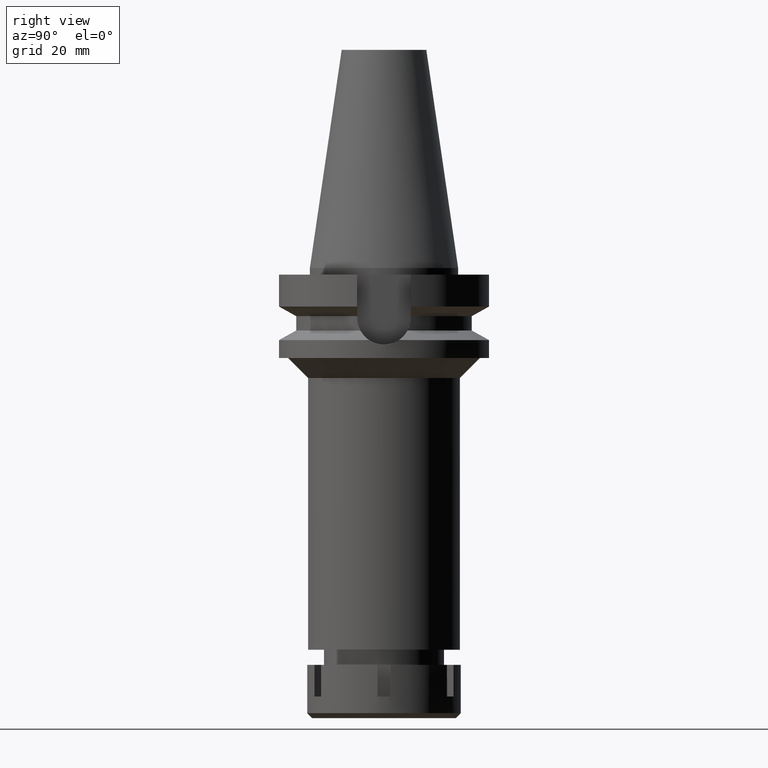
[diagram: clean part render]
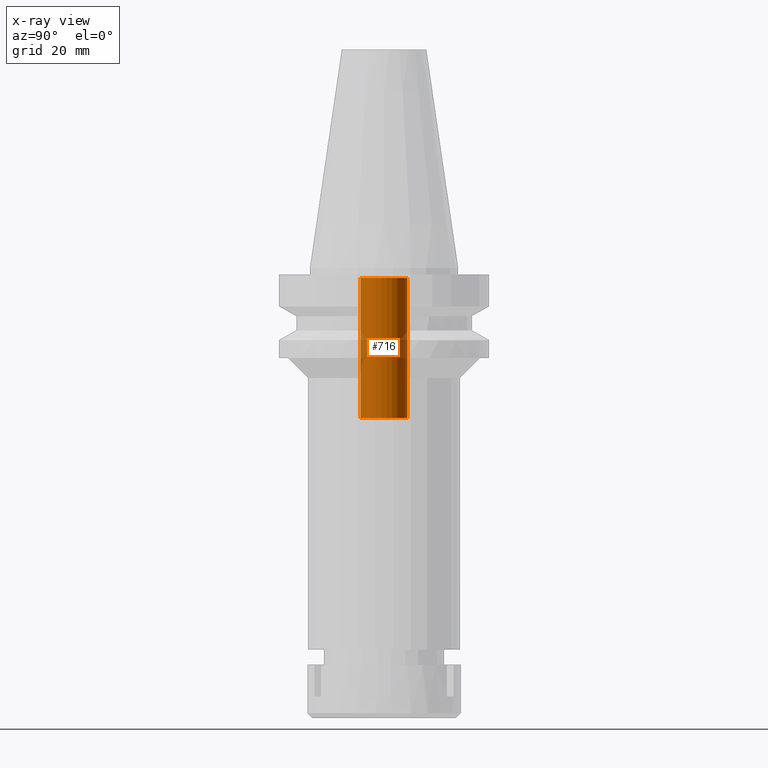
[diagram: x-ray — body ghosted, one internal face saturated and labeled with its STEP entity id]
A machine part, right view, then the same camera in x-ray: the body is ghosted and one INTERNAL B-rep face — a face not visible from any outside direction — is saturated and labeled: STEP entity #716.
In plain terms, the highlighted cylindrical surface (edge-blend (fillet) strip) has radius 7 mm, axis along (0, 0, -1).
Its self-contained STEP definition (entity closure, byte-faithful):
#232 = VECTOR ( 'NONE', #3646, 1000.000000000000000 ) ;
#417 = EDGE_CURVE ( 'NONE', #2951, #2293, #1052, .T. ) ;
#441 = DIRECTION ( 'NONE',  ( 0.0000000000000000000, -1.000000000000000000, 0.0000000000000000000 ) ) ;
#636 = DIRECTION ( 'NONE',  ( 0.0000000000000000000, 0.0000000000000000000, -1.000000000000000000 ) ) ;
#672 = AXIS2_PLACEMENT_3D ( 'NONE', #1208, #3434, #3378 ) ;
#716 = ADVANCED_FACE ( 'NONE', ( #2945 ), #2716, .F. ) ;
#828 = AXIS2_PLACEMENT_3D ( 'NONE', #1041, #2146, #441 ) ;
#872 = CARTESIAN_POINT ( 'NONE',  ( 0.0000000000000000000, -7.000000000000000000, -3.000000000000000000 ) ) ;
#900 = CIRCLE ( 'NONE', #672, 7.000000000000000000 ) ;
#937 = ORIENTED_EDGE ( 'NONE', *, *, #417, .T. ) ;
#1041 = CARTESIAN_POINT ( 'NONE',  ( 0.0000000000000000000, 2.143376827867999896E-14, 75.02000000000001023 ) ) ;
#1052 = LINE ( 'NONE', #1377, #2211 ) ;
#1118 = ORIENTED_EDGE ( 'NONE', *, *, #2864, .T. ) ;
#1208 = CARTESIAN_POINT ( 'NONE',  ( 0.0000000000000000000, 2.143376827867999896E-14, -3.000000000000000000 ) ) ;
#1223 = CARTESIAN_POINT ( 'NONE',  ( 0.0000000000000000000, 7.000000000000000000, -3.000000000000000000 ) ) ;
#1377 = CARTESIAN_POINT ( 'NONE',  ( 0.0000000000000000000, -7.000000000000000000, -45.00000000000000000 ) ) ;
#1382 = ORIENTED_EDGE ( 'NONE', *, *, #2645, .F. ) ;
#1425 = CIRCLE ( 'NONE', #3468, 7.000000000000000000 ) ;
#1519 = DIRECTION ( 'NONE',  ( 0.0000000000000000000, 1.000000000000000000, 0.0000000000000000000 ) ) ;
#1970 = ORIENTED_EDGE ( 'NONE', *, *, #2002, .T. ) ;
#2002 = EDGE_CURVE ( 'NONE', #2293, #2024, #900, .T. ) ;
#2024 = VERTEX_POINT ( 'NONE', #1223 ) ;
#2038 = CARTESIAN_POINT ( 'NONE',  ( 0.0000000000000000000, -7.000000000000000000, -45.00000000000000000 ) ) ;
#2146 = DIRECTION ( 'NONE',  ( 0.0000000000000000000, 0.0000000000000000000, -1.000000000000000000 ) ) ;
#2211 = VECTOR ( 'NONE', #2469, 1000.000000000000000 ) ;
#2265 = CARTESIAN_POINT ( 'NONE',  ( 0.0000000000000000000, 2.143376827867999896E-14, -45.00000000000000000 ) ) ;
#2293 = VERTEX_POINT ( 'NONE', #872 ) ;
#2395 = LINE ( 'NONE', #3533, #232 ) ;
#2469 = DIRECTION ( 'NONE',  ( 0.0000000000000000000, 0.0000000000000000000, 1.000000000000000000 ) ) ;
#2645 = EDGE_CURVE ( 'NONE', #3644, #2024, #2395, .T. ) ;
#2681 = CARTESIAN_POINT ( 'NONE',  ( 0.0000000000000000000, 7.000000000000000000, -45.00000000000000000 ) ) ;
#2716 = CYLINDRICAL_SURFACE ( 'NONE', #828, 7.000000000000000000 ) ;
#2864 = EDGE_CURVE ( 'NONE', #3644, #2951, #1425, .T. ) ;
#2945 = FACE_OUTER_BOUND ( 'NONE', #3328, .T. ) ;
#2951 = VERTEX_POINT ( 'NONE', #2038 ) ;
#3328 = EDGE_LOOP ( 'NONE', ( #1118, #937, #1970, #1382 ) ) ;
#3378 = DIRECTION ( 'NONE',  ( 0.0000000000000000000, -1.000000000000000000, 0.0000000000000000000 ) ) ;
#3434 = DIRECTION ( 'NONE',  ( 0.0000000000000000000, 0.0000000000000000000, 1.000000000000000000 ) ) ;
#3468 = AXIS2_PLACEMENT_3D ( 'NONE', #2265, #636, #1519 ) ;
#3533 = CARTESIAN_POINT ( 'NONE',  ( 0.0000000000000000000, 7.000000000000000000, -45.00000000000000000 ) ) ;
#3644 = VERTEX_POINT ( 'NONE', #2681 ) ;
#3646 = DIRECTION ( 'NONE',  ( 0.0000000000000000000, 0.0000000000000000000, 1.000000000000000000 ) ) ;